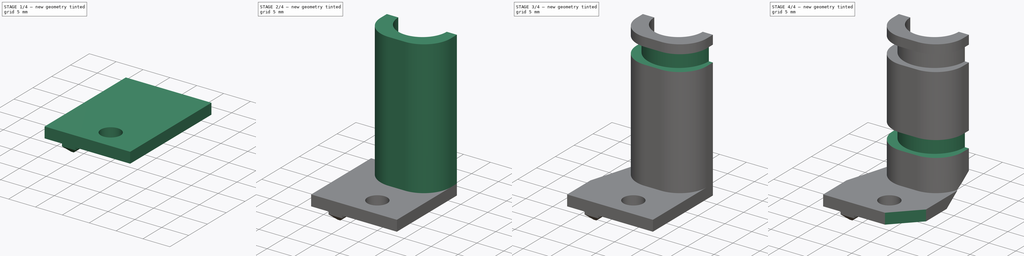
[diagram: build sequence overview — one tinted view per stage of 4, left to right]
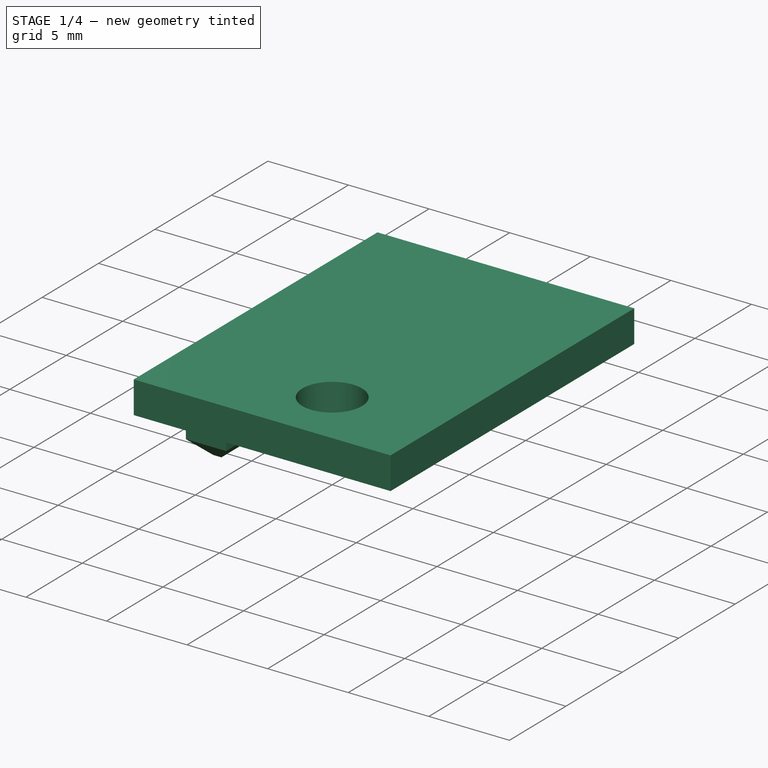
[diagram: stage 1 of 4 — iso view after this stage's code; geometry added in this stage tinted green]
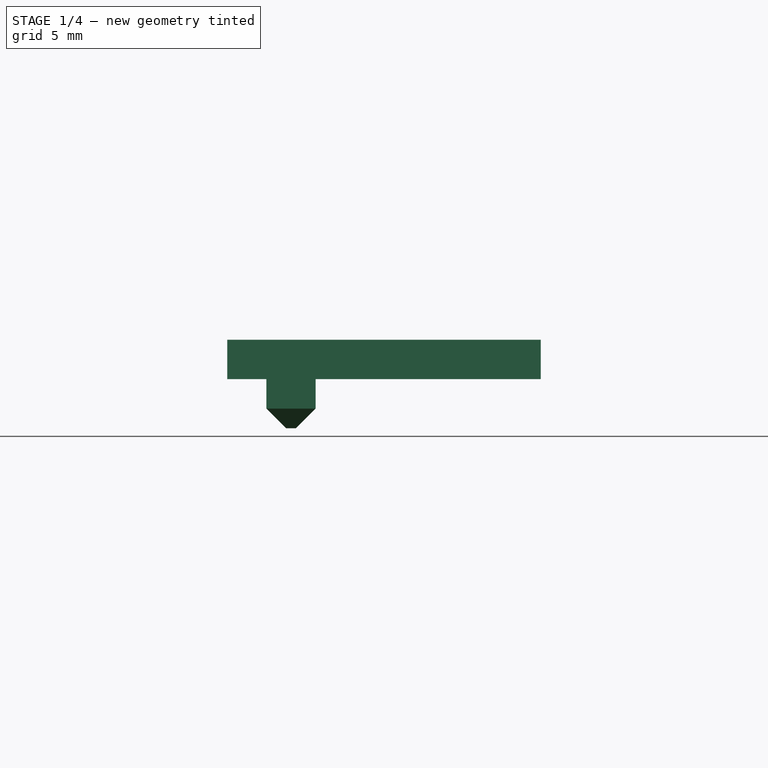
[diagram: stage 1 of 4 — front view after this stage's code; geometry added in this stage tinted green]
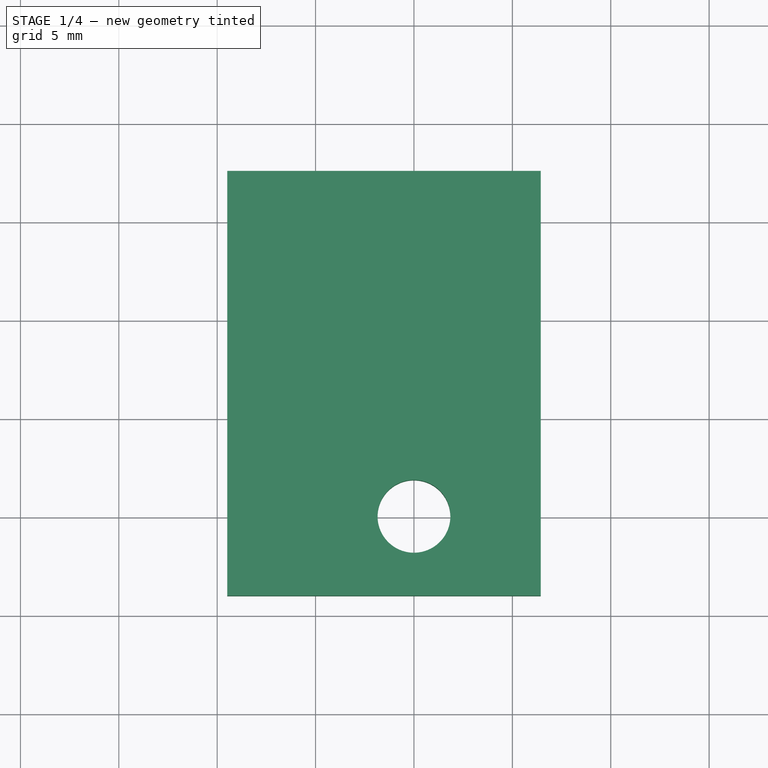
[diagram: stage 1 of 4 — top view after this stage's code; geometry added in this stage tinted green]
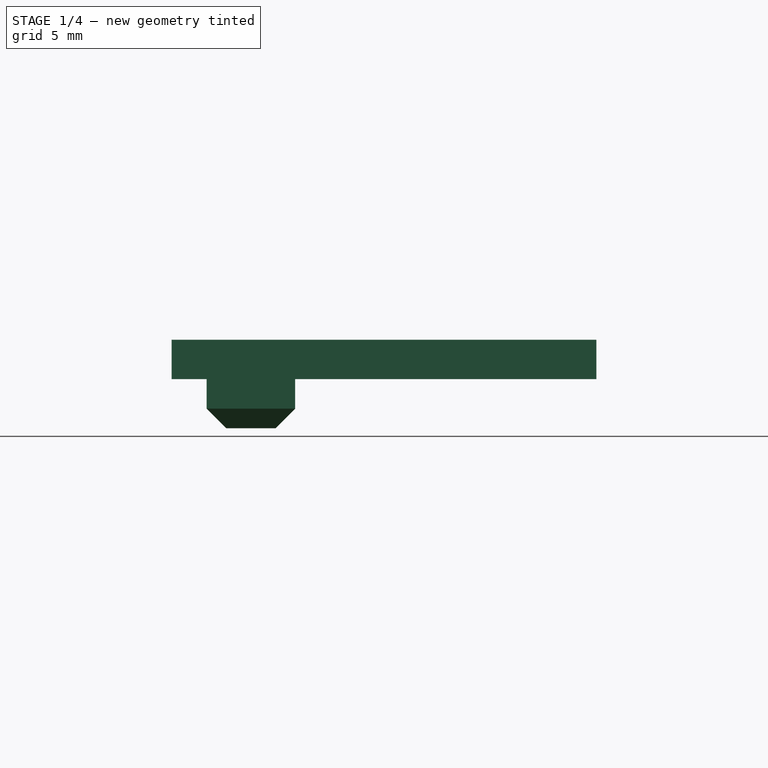
[diagram: stage 1 of 4 — right view after this stage's code; geometry added in this stage tinted green]
FCSTD DOCUMENT  (FreeCAD 0.17R13662 (Git))
Label: redgum_cable_guide_V2
License: All rights reserved
LicenseURL: http://en.wikipedia.org/wiki/All_rights_reserved
objects: Sketcher::SketchObject×9, PartDesign::Pocket×4, PartDesign::Pad×3, PartDesign::Fillet×2, PartDesign::Groove×2, PartDesign::Chamfer×1, PartDesign::Line×1, PartDesign::Plane×1, PartDesign::Body×1
note: 33 computed .brp shape members not serialized (recipe doc carries the construction recipe); baked Part::Feature solids carry a one-line shape summary decoded from their .brp

FEATURE [Sketcher::SketchObject] Sketch
  MapMode = 5
  Support = -> [XY_Plane]
  sketch-geometry (5):
    g0: Circle CenterX=0 CenterY=0 CenterZ=0 NormalX=0 NormalY=0 NormalZ=1 AngleXU=0 Radius=1.85
    g1: LineSegment StartX=6.44301 StartY=17.5606 StartZ=0 EndX=-9.48799 EndY=17.5606 EndZ=0
    g2: LineSegment StartX=-9.48799 StartY=17.5606 StartZ=0 EndX=-9.48799 EndY=-4.03157 EndZ=0
    g3: LineSegment StartX=-9.48799 StartY=-4.03157 StartZ=0 EndX=6.44301 EndY=-4.03157 EndZ=0
    g4: LineSegment StartX=6.44301 StartY=-4.03157 StartZ=0 EndX=6.44301 EndY=17.5606 EndZ=0
  constraints (10):
    c: Coincident(g0,g-1)
    c: Radius(g0) = 1.85
    c: Coincident(g1,g2)
    c: Coincident(g2,g3)
    c: Coincident(g3,g4)
    c: Coincident(g4,g1)
    c: Horizontal(g1)
    c: Horizontal(g3)
    c: Vertical(g2)
    c: Vertical(g4)
FEATURE [PartDesign::Pad] Pad
  Length = 2
  Length2 = 100
  Profile = -> Sketch
  Type = 0
FEATURE [Sketcher::SketchObject] Sketch001
  MapMode = 5
  Placement = pos=(0,0,0) rot=(1,0,0;3.14159rad)
  Support = -> [Pad]
  sketch-geometry (4):
    g0: LineSegment StartX=-7.5 StartY=2.25 StartZ=0 EndX=-5 EndY=2.25 EndZ=0
    g1: LineSegment StartX=-5 StartY=2.25 StartZ=0 EndX=-5 EndY=-2.25 EndZ=0
    g2: LineSegment StartX=-5 StartY=-2.25 StartZ=0 EndX=-7.5 EndY=-2.25 EndZ=0
    g3: LineSegment StartX=-7.5 StartY=-2.25 StartZ=0 EndX=-7.5 EndY=2.25 EndZ=0
  constraints (12):
    c: Coincident(g0,g1)
    c: Coincident(g1,g2)
    c: Coincident(g2,g3)
    c: Coincident(g3,g0)
    c: Horizontal(g0)
    c: Horizontal(g2)
    c: Vertical(g1)
    c: Vertical(g3)
    c: Symmetric(g0,g1,g-1)
    c: DistanceX(g0,g-1) = 5
    c: Distance(g0) = 2.5
    c: Distance(g3) = 4.5
FEATURE [PartDesign::Pad] Pad001
  BaseFeature = -> Pad
  Length = 2.5
  Length2 = 100
  Profile = -> Sketch001
  Type = 0
FEATURE [PartDesign::Chamfer] Chamfer
  Base = -> Pad001 [Edge24,Edge26,Edge20,Edge22]
  BaseFeature = -> Pad001
  Size = 1
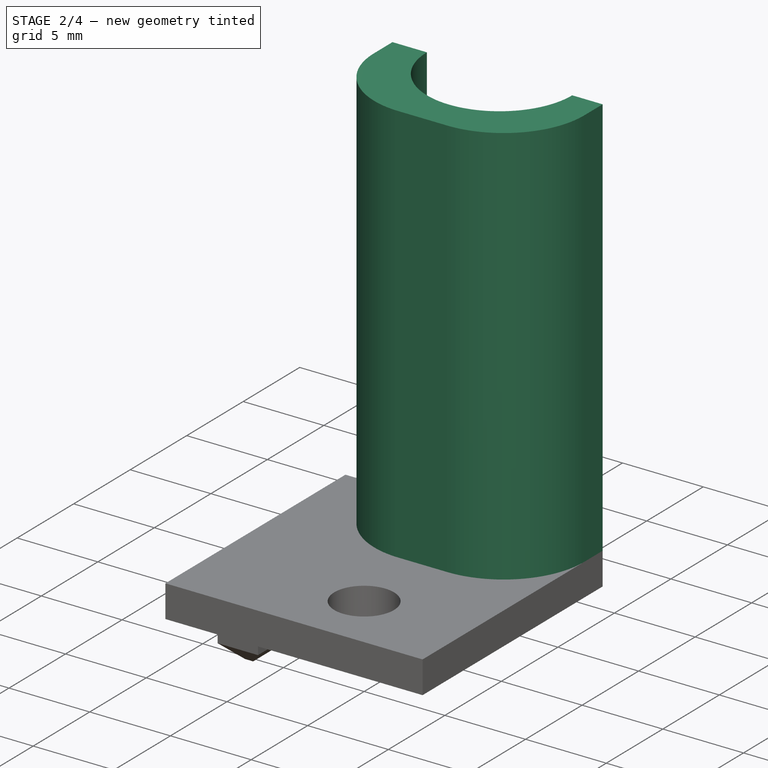
[diagram: stage 2 of 4 — iso view after this stage's code; geometry added in this stage tinted green]
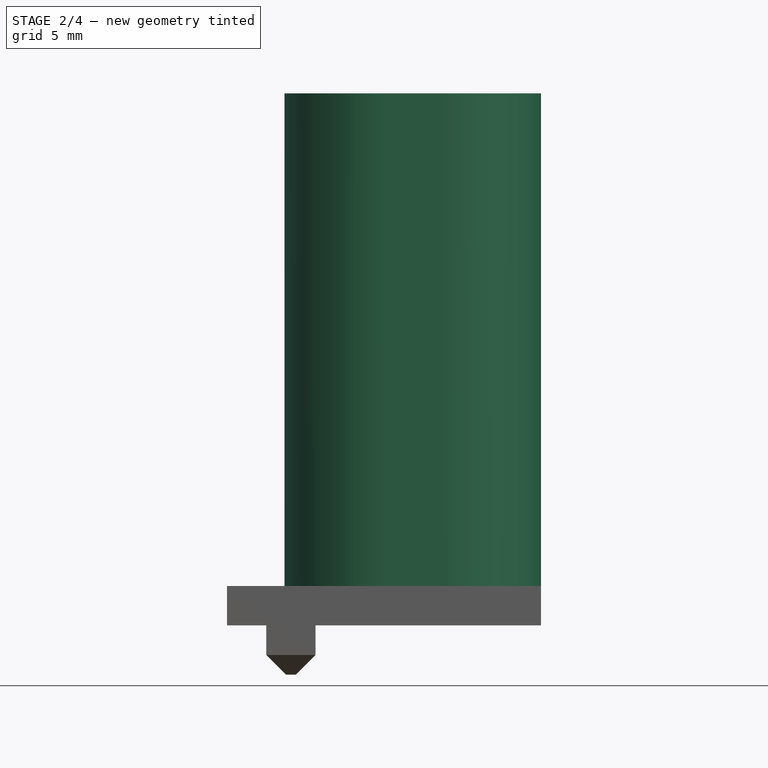
[diagram: stage 2 of 4 — front view after this stage's code; geometry added in this stage tinted green]
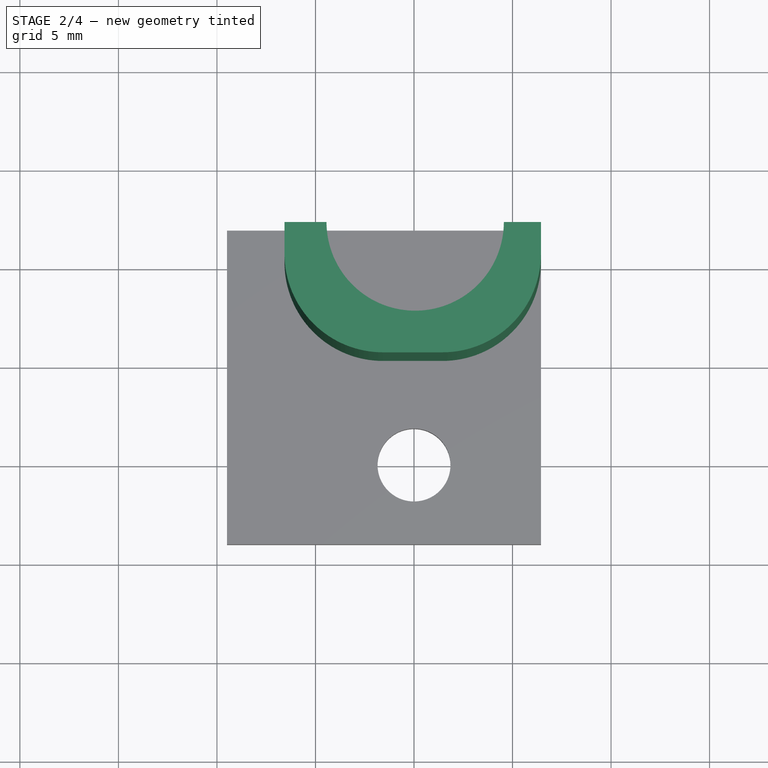
[diagram: stage 2 of 4 — top view after this stage's code; geometry added in this stage tinted green]
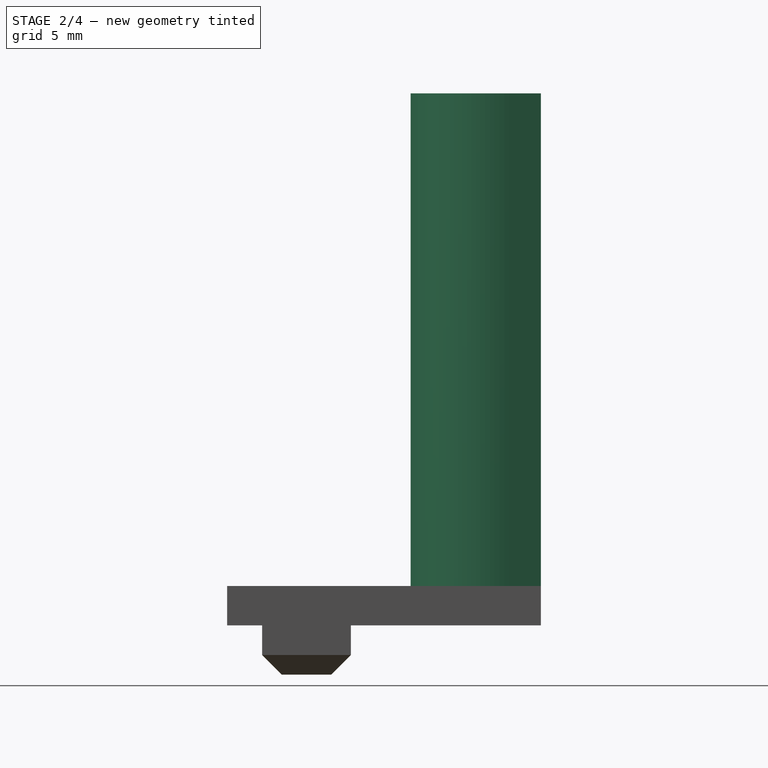
[diagram: stage 2 of 4 — right view after this stage's code; geometry added in this stage tinted green]
FEATURE [Sketcher::SketchObject] Sketch002
  MapMode = 5
  Placement = pos=(0,0,2) rot=(0,0,1;0rad)
  Support = -> [Chamfer]
  sketch-geometry (5):
    g0: LineSegment [constr] StartX=0 StartY=0 StartZ=0 EndX=0 EndY=11.896 EndZ=0
    g1: LineSegment StartX=14.3239 StartY=19.9222 StartZ=0 EndX=-17.8343 EndY=19.9222 EndZ=0
    g2: LineSegment StartX=-17.8343 StartY=19.9222 StartZ=0 EndX=-17.8343 EndY=11.896 EndZ=0
    g3: LineSegment StartX=-17.8343 StartY=11.896 StartZ=0 EndX=14.3239 EndY=11.896 EndZ=0
    g4: LineSegment StartX=14.3239 StartY=11.896 StartZ=0 EndX=14.3239 EndY=19.9222 EndZ=0
  constraints (12):
    c: Coincident(g0,g-1)
    c: PointOnObject(g0,g-2)
    c: Distance(g0) = 11.896
    c: Coincident(g1,g2)
    c: Coincident(g2,g3)
    c: Coincident(g3,g4)
    c: Coincident(g4,g1)
    c: Horizontal(g1)
    c: Horizontal(g3)
    c: Vertical(g2)
    c: Vertical(g4)
    c: PointOnObject(g0,g3)
FEATURE [PartDesign::Pocket] Pocket
  BaseFeature = -> Chamfer
  Length = 5
  Length2 = 100
  Profile = -> Sketch002
  Type = 0
FEATURE [Sketcher::SketchObject] Sketch003
  ExternalGeometry = -> [Pocket]
  MapMode = 5
  Placement = pos=(0,0,2) rot=(0,0,1;0rad)
  Support = -> [Pocket]
  sketch-geometry (6):
    g0: LineSegment StartX=-6.57267 StartY=11.896 StartZ=0 EndX=-6.57267 EndY=5.28207 EndZ=0
    g1: LineSegment StartX=-6.57267 StartY=5.28207 StartZ=0 EndX=6.44301 EndY=5.28207 EndZ=0
    g2: LineSegment StartX=6.44301 StartY=5.28207 StartZ=0 EndX=6.44301 EndY=11.896 EndZ=0
    g3: ArcOfCircle CenterX=0.059172 CenterY=11.896 CenterZ=0 NormalX=0 NormalY=0 NormalZ=1 AngleXU=0 Radius=4.5 StartAngle=3.14159 EndAngle=6.28319
    g4: LineSegment StartX=-4.44083 StartY=11.896 StartZ=0 EndX=-6.57267 EndY=11.896 EndZ=0
    g5: LineSegment StartX=4.55917 StartY=11.896 StartZ=0 EndX=6.44301 EndY=11.896 EndZ=0
  constraints (17):
    c: Coincident(g0,g1)
    c: Coincident(g1,g2)
    c: Horizontal(g1)
    c: Vertical(g0)
    c: Vertical(g2)
    c: Radius(g3) = 4.5
    c: Coincident(g4,g3)
    c: Coincident(g4,g0)
    c: Horizontal(g4)
    c: Coincident(g5,g3)
    c: Coincident(g5,g2)
    c: Horizontal(g5)
    c: PointOnObject(g3,g-4)
    c: PointOnObject(g3,g-4)
    c: PointOnObject(g3,g-4)
    c: Coincident(g2,g-4)
    c: Coincident(g2,g-3)
FEATURE [PartDesign::Pad] Pad002
  BaseFeature = -> Pocket
  Length = 25
  Length2 = 100
  Profile = -> Sketch003
  Type = 0
FEATURE [PartDesign::Fillet] Fillet
  Base = -> Pad002 [Edge42,Edge52]
  BaseFeature = -> Pad002
  Radius = 5
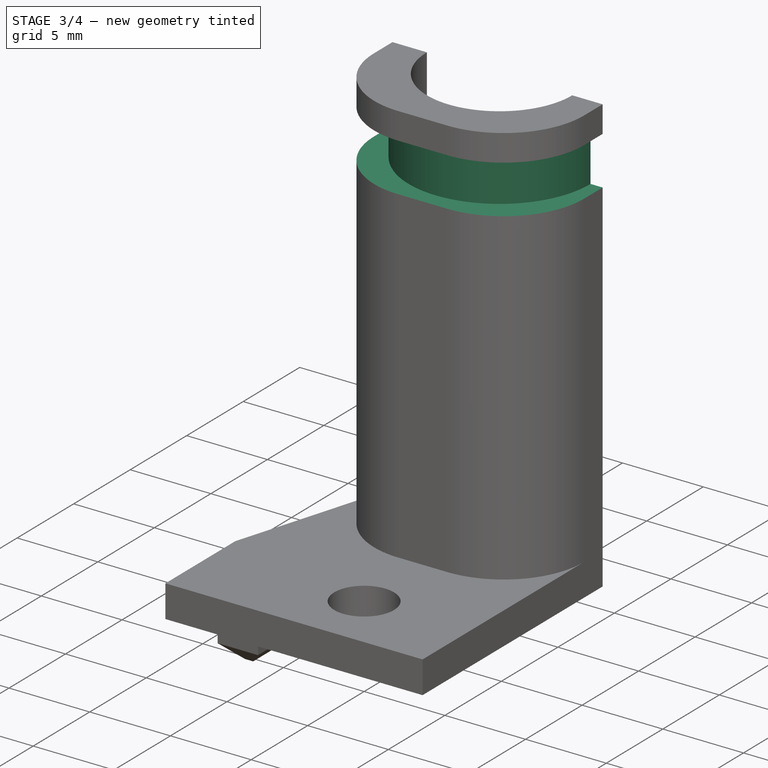
[diagram: stage 3 of 4 — iso view after this stage's code; geometry added in this stage tinted green]
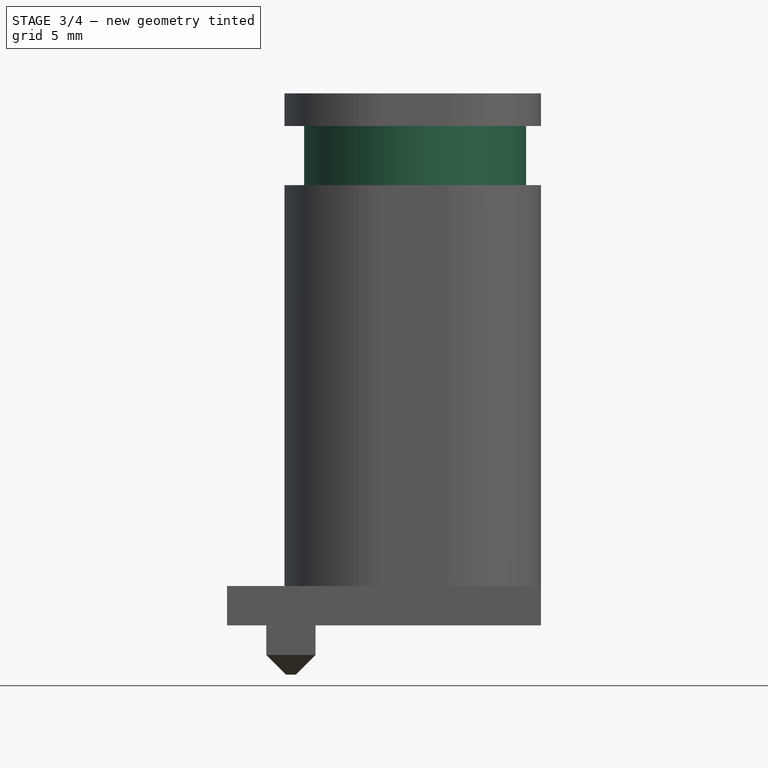
[diagram: stage 3 of 4 — front view after this stage's code; geometry added in this stage tinted green]
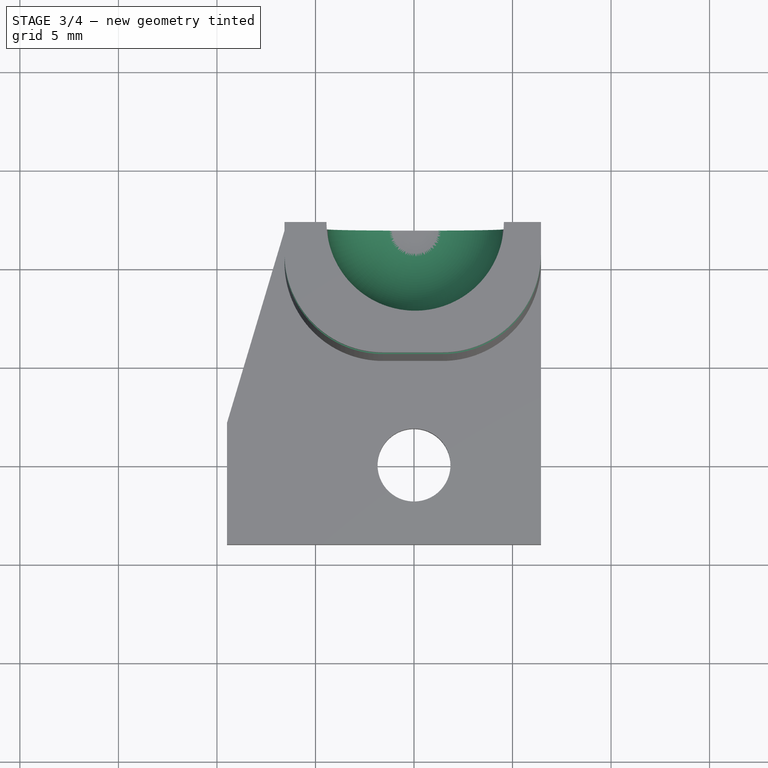
[diagram: stage 3 of 4 — top view after this stage's code; geometry added in this stage tinted green]
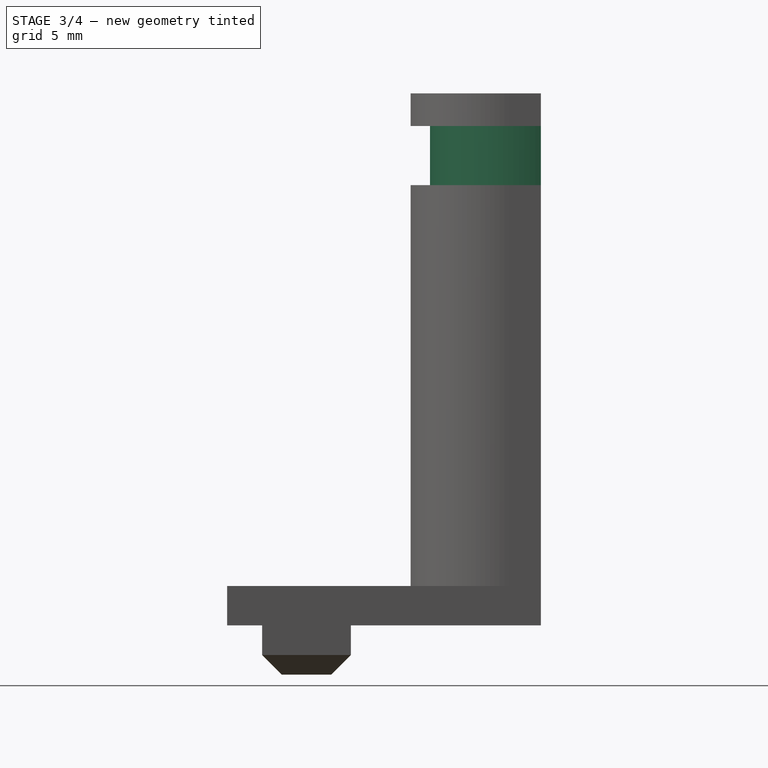
[diagram: stage 3 of 4 — right view after this stage's code; geometry added in this stage tinted green]
FEATURE [Sketcher::SketchObject] Sketch004
  ExternalGeometry = -> [Fillet]
  MapMode = 5
  Placement = pos=(0,0,2) rot=(0,0,1;0rad)
  Support = -> [Fillet]
  sketch-geometry (3):
    g0: LineSegment StartX=-6.57267 StartY=11.896 StartZ=0 EndX=-10.3266 EndY=-0.661558 EndZ=0
    g1: LineSegment StartX=-10.3266 StartY=-0.661558 StartZ=0 EndX=-10.3266 EndY=13.6032 EndZ=0
    g2: LineSegment StartX=-10.3266 StartY=13.6032 StartZ=0 EndX=-6.57267 EndY=11.896 EndZ=0
  constraints (5):
    c: Coincident(g0,g-3)
    c: Coincident(g1,g0)
    c: Vertical(g1)
    c: Coincident(g2,g1)
    c: Coincident(g2,g0)
FEATURE [PartDesign::Pocket] Pocket001
  BaseFeature = -> Fillet
  Length = 5
  Length2 = 100
  Profile = -> Sketch004
  Type = 0
FEATURE [PartDesign::Fillet] Fillet001
  Base = -> Pocket001 [Edge47]
  BaseFeature = -> Pocket001
  Radius = 4
FEATURE [PartDesign::Line] DatumLine
  AttacherType = Attacher::AttachEngineLine
  MapMode = 19
  Placement = pos=(0.059172,11.896,27) rot=(0,0,1;3.14159rad)
  Support = -> [Fillet001]
FEATURE [Sketcher::SketchObject] Sketch005
  MapMode = 5
  Placement = pos=(0,11.896,0) rot=(0,0.707107,0.707107;3.14159rad)
  Support = -> [Fillet001]
  sketch-geometry (4):
    g0: LineSegment StartX=5.57367 StartY=25.3417 StartZ=0 EndX=8.57677 EndY=25.3417 EndZ=0
    g1: LineSegment StartX=8.57677 StartY=25.3417 StartZ=0 EndX=8.57677 EndY=22.3417 EndZ=0
    g2: LineSegment StartX=8.57677 StartY=22.3417 StartZ=0 EndX=5.57367 EndY=22.3417 EndZ=0
    g3: LineSegment StartX=5.57367 StartY=22.3417 StartZ=0 EndX=5.57367 EndY=25.3417 EndZ=0
  constraints (9):
    c: Coincident(g0,g1)
    c: Coincident(g1,g2)
    c: Coincident(g2,g3)
    c: Coincident(g3,g0)
    c: Horizontal(g0)
    c: Horizontal(g2)
    c: Vertical(g1)
    c: Vertical(g3)
    c: Distance(g3) = 3
FEATURE [PartDesign::Groove] Groove
  Angle = 360
  Axis = (0,0,1)
  Base = (0.059172,11.896,27)
  BaseFeature = -> Fillet001
  Profile = -> Sketch005
  ReferenceAxis = -> DatumLine
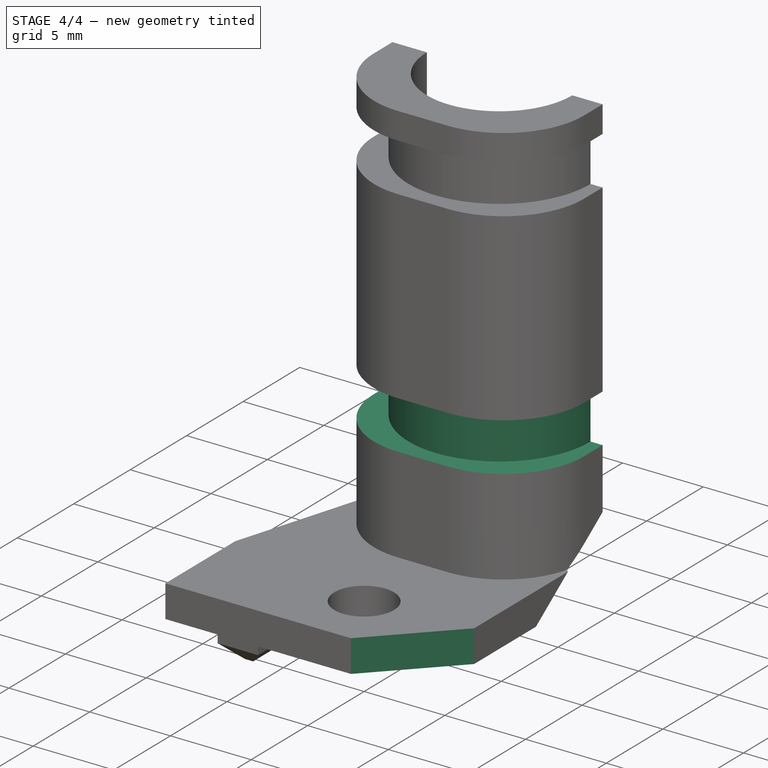
[diagram: stage 4 of 4 — iso view after this stage's code; geometry added in this stage tinted green]
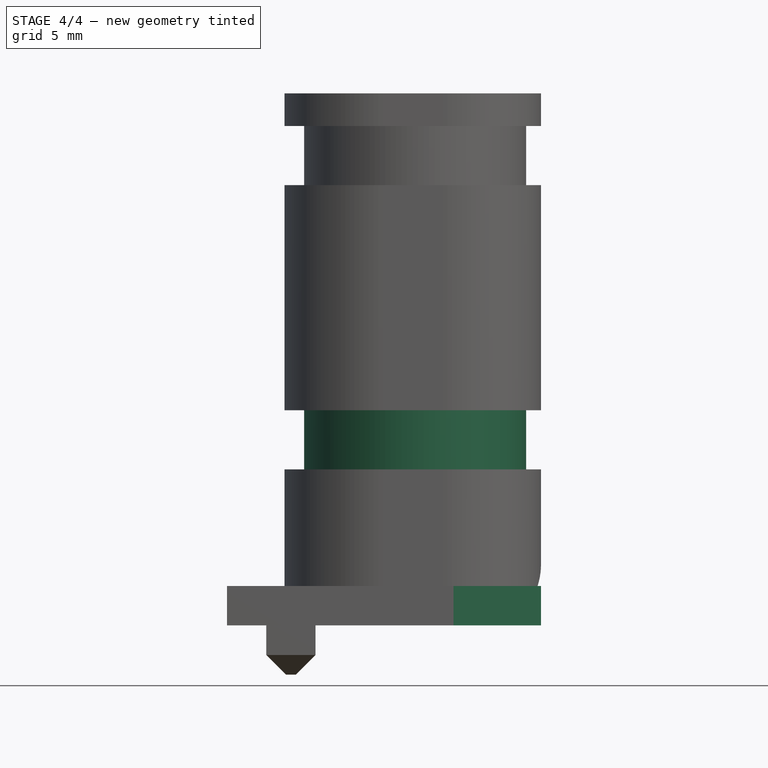
[diagram: stage 4 of 4 — front view after this stage's code; geometry added in this stage tinted green]
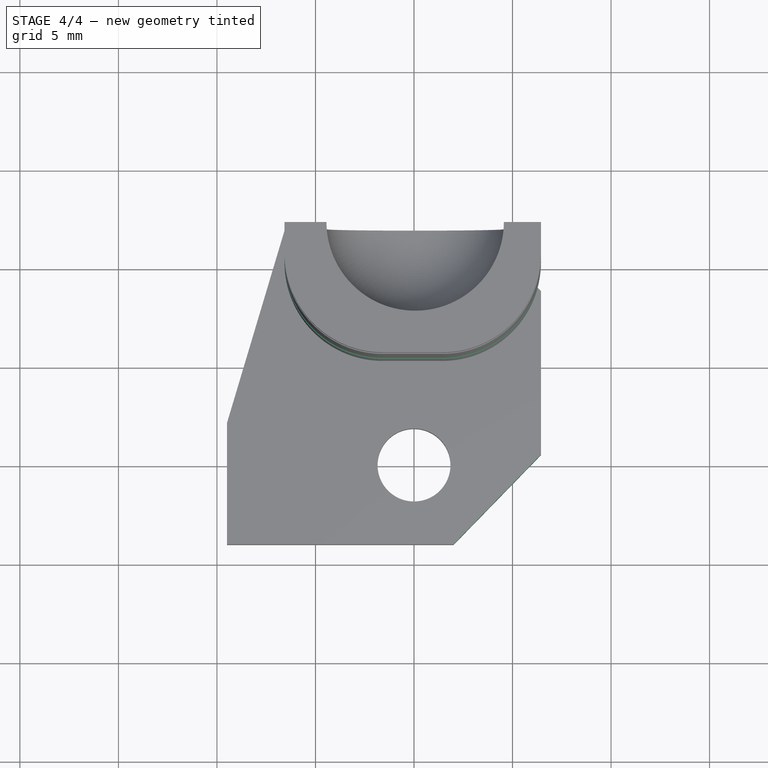
[diagram: stage 4 of 4 — top view after this stage's code; geometry added in this stage tinted green]
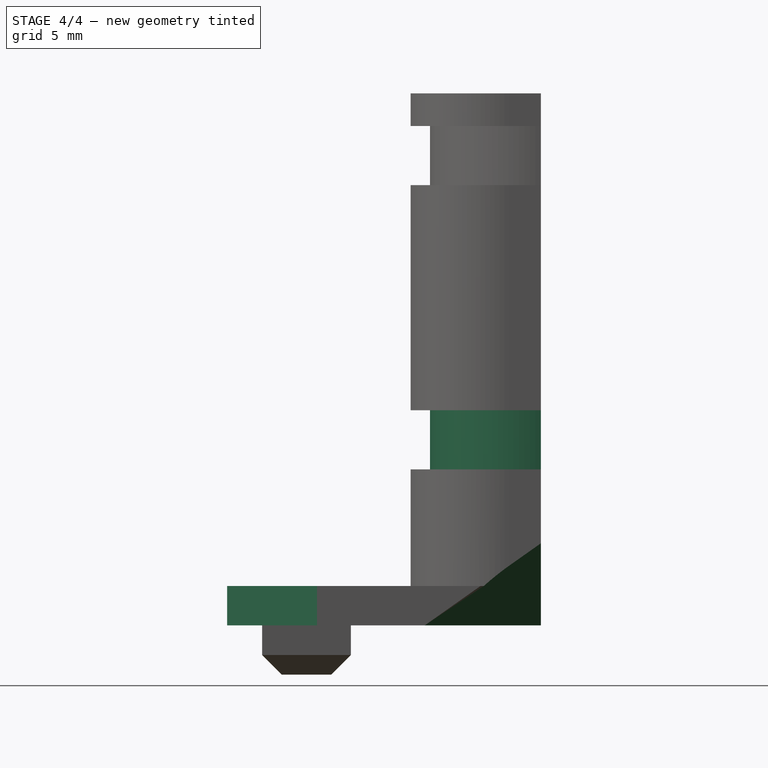
[diagram: stage 4 of 4 — right view after this stage's code; geometry added in this stage tinted green]
FEATURE [Sketcher::SketchObject] Sketch006
  ExternalGeometry = -> [Groove]
  MapMode = 5
  Placement = pos=(0,11.896,0) rot=(0,0.707107,0.707107;3.14159rad)
  Support = -> [Groove]
  sketch-geometry (4):
    g0: LineSegment StartX=-5.69202 StartY=10.9173 StartZ=0 EndX=-10.0282 EndY=10.9173 EndZ=0
    g1: LineSegment StartX=-10.0282 StartY=10.9173 StartZ=0 EndX=-10.0282 EndY=7.91728 EndZ=0
    g2: LineSegment StartX=-10.0282 StartY=7.91728 StartZ=0 EndX=-5.69202 EndY=7.91728 EndZ=0
    g3: LineSegment StartX=-5.69202 StartY=7.91728 StartZ=0 EndX=-5.69202 EndY=10.9173 EndZ=0
  constraints (10):
    c: Coincident(g0,g1)
    c: Coincident(g1,g2)
    c: Coincident(g2,g3)
    c: Coincident(g3,g0)
    c: Horizontal(g0)
    c: Horizontal(g2)
    c: Vertical(g1)
    c: Vertical(g3)
    c: Equal(g3,g-3)
    c: DistanceX(g0,g-3) = 0
FEATURE [PartDesign::Groove] Groove001
  Angle = 360
  Axis = (0,0,1)
  Base = (0.059172,11.896,27)
  BaseFeature = -> Groove
  Profile = -> Sketch006
  ReferenceAxis = -> DatumLine
  Reversed = true
FEATURE [PartDesign::Plane] DatumPlane
  AttachmentOffset = pos=(0,0,6) rot=(0.678598,0.678598,-0.281085;1.09606rad)
  MapMode = 5
  Placement = pos=(12.443,0,0) rot=(0.357407,0.862856,0.357407;2.84764rad)
  Support = -> [Groove001]
FEATURE [Sketcher::SketchObject] Sketch007
  MapMode = 5
  Placement = pos=(12.443,0,0) rot=(0.357407,0.862856,0.357407;2.84764rad)
  Support = -> [DatumPlane]
  sketch-geometry (4):
    g0: LineSegment StartX=-6.18358 StartY=13.2399 StartZ=0 EndX=28.1644 EndY=13.2399 EndZ=0
    g1: LineSegment StartX=28.1644 StartY=13.2399 StartZ=0 EndX=28.1644 EndY=-9.03304 EndZ=0
    g2: LineSegment StartX=28.1644 StartY=-9.03304 StartZ=0 EndX=-6.18358 EndY=-9.03304 EndZ=0
    g3: LineSegment StartX=-6.18358 StartY=-9.03304 StartZ=0 EndX=-6.18358 EndY=13.2399 EndZ=0
  constraints (8):
    c: Coincident(g0,g1)
    c: Coincident(g1,g2)
    c: Coincident(g2,g3)
    c: Coincident(g3,g0)
    c: Horizontal(g0)
    c: Horizontal(g2)
    c: Vertical(g1)
    c: Vertical(g3)
FEATURE [PartDesign::Pocket] Pocket002
  BaseFeature = -> Groove001
  Length = 5
  Length2 = 100
  Profile = -> Sketch007
  Reversed = true
  Type = 0
FEATURE [Sketcher::SketchObject] Sketch008
  MapMode = 5
  Placement = pos=(0,0,2) rot=(0,0,1;0rad)
  Support = -> [Pocket002]
  sketch-geometry (3):
    g0: LineSegment StartX=0.54895 StartY=-5.52705 StartZ=0 EndX=9.10721 EndY=3.27103 EndZ=0
    g1: LineSegment StartX=9.10721 StartY=3.27103 StartZ=0 EndX=9.32247 EndY=-8.51378 EndZ=0
    g2: LineSegment StartX=9.32247 StartY=-8.51378 StartZ=0 EndX=0.54895 EndY=-5.52705 EndZ=0
  constraints (3):
    c: Coincident(g0,g1)
    c: Coincident(g1,g2)
    c: Coincident(g0,g2)
FEATURE [PartDesign::Pocket] Pocket003
  BaseFeature = -> Pocket002
  Length = 5
  Length2 = 100
  Profile = -> Sketch008
  Type = 0
FEATURE [PartDesign::Body] Body
  Group = -> [Sketch,Pad,Sketch001,Pad001,Chamfer,Sketch002,Pocket,Sketch003,Pad002,Fillet,Sketch004,Pocket001,Fillet001,DatumLine,Sketch005,Groove,Sketch006,Groove001,DatumPlane,Sketch007,Pocket002,Sketch008,Pocket003]
  Origin = -> Origin
  Tip = -> Pocket003
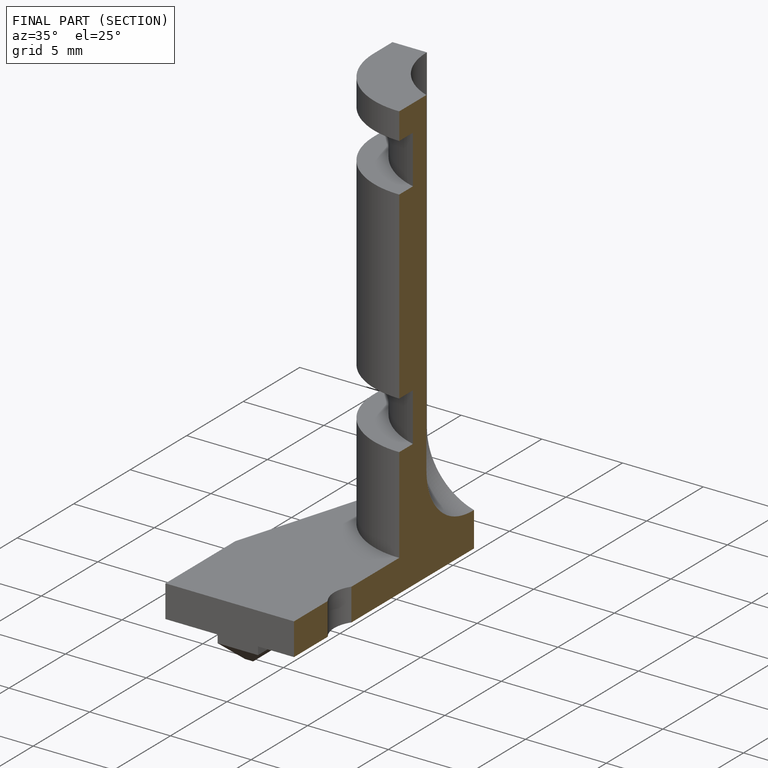
[diagram: finished part — half-section view (interior)]
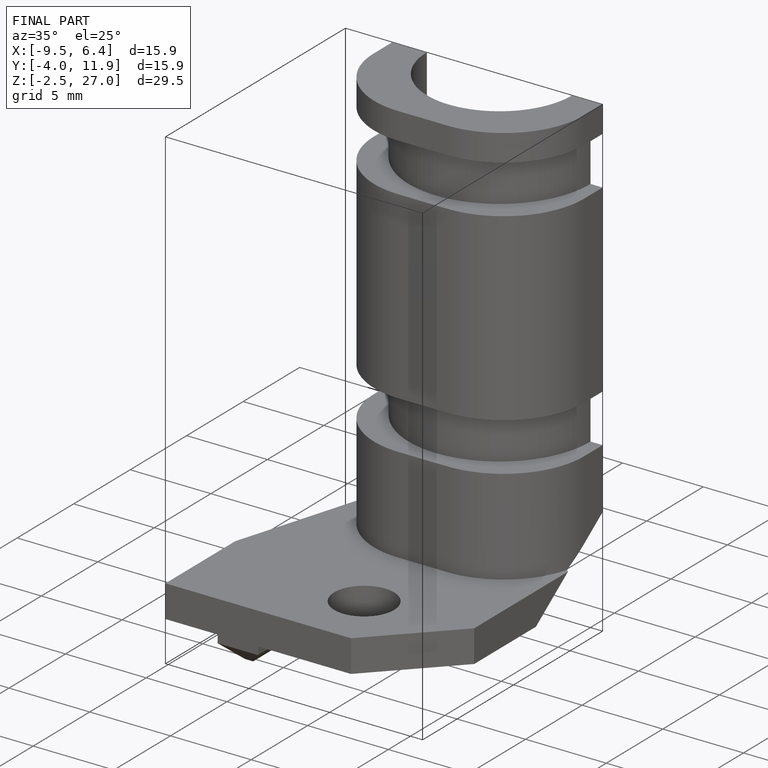
[diagram: finished part — iso view with bounding-box wireframe]
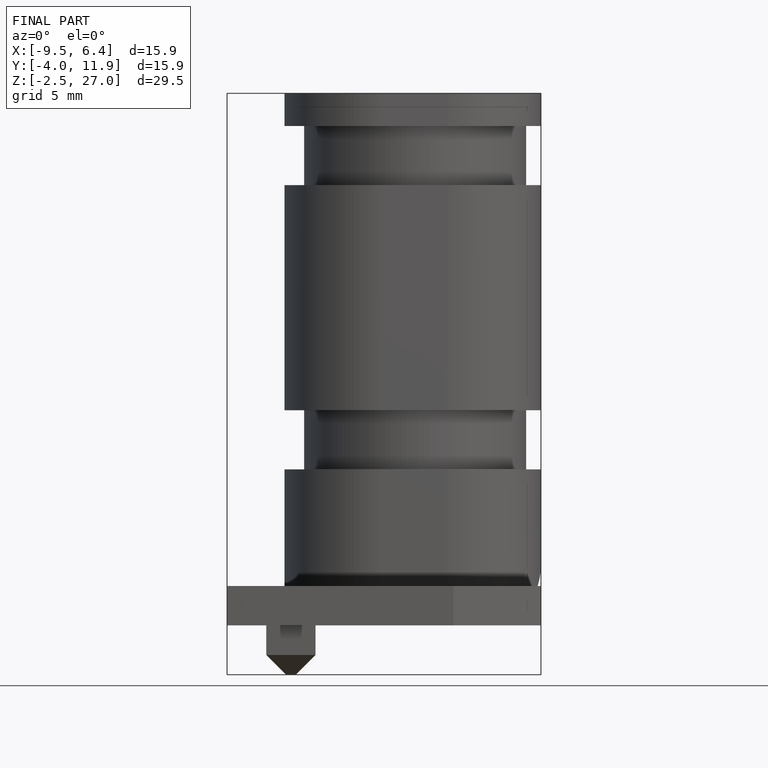
[diagram: finished part — front view with bounding-box wireframe]
